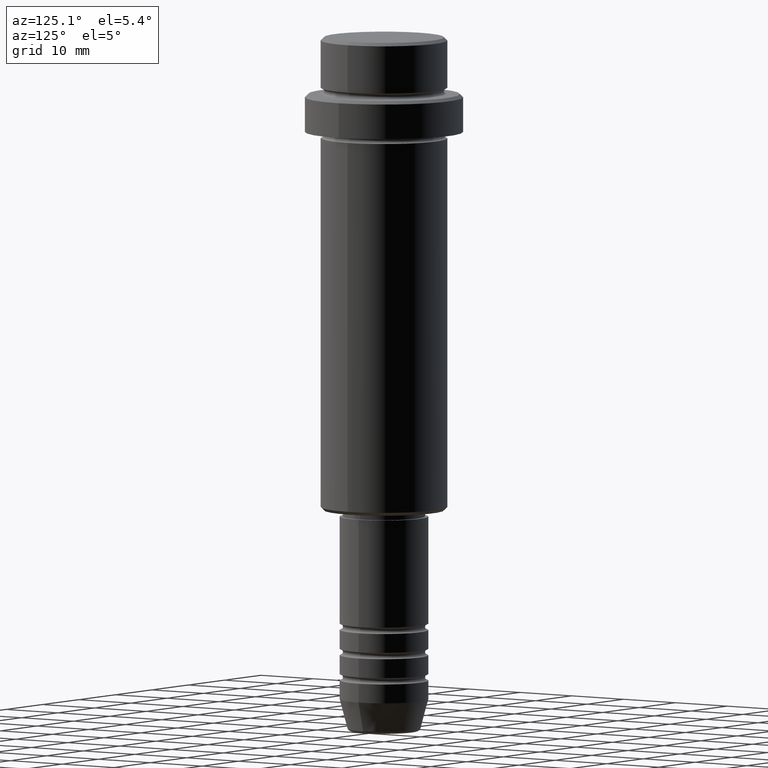
[diagram: clean part render]
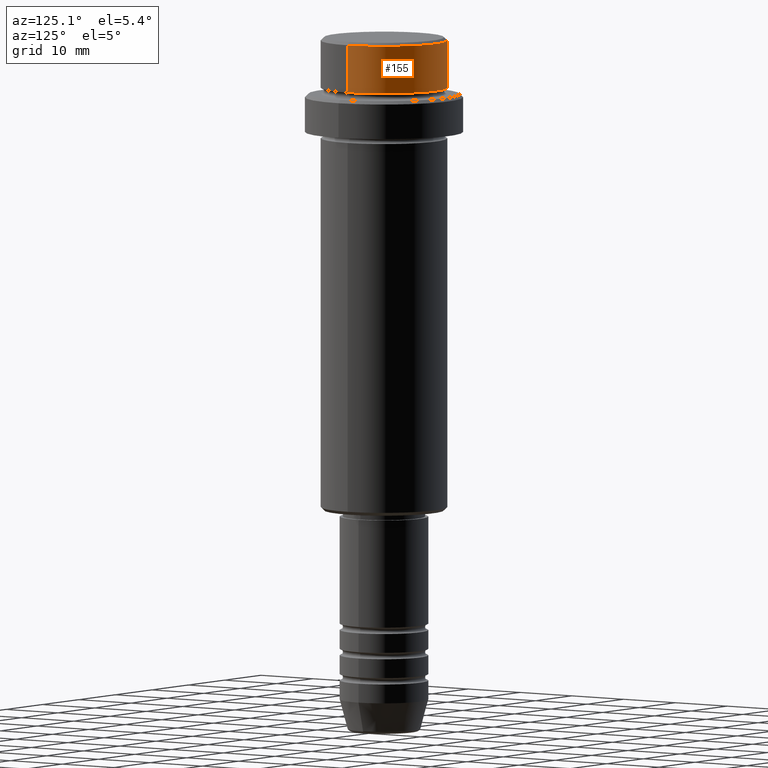
[diagram: same view with one face highlighted and labeled with its STEP entity id]
A machine part, auxiliary view. The second image highlights one B-rep face of the part: STEP entity #155.
In plain terms, the highlighted cylindrical surface (partial cylindrical patch) has radius 10 mm, axis along (-0, -0, 1).
Its self-contained STEP definition (entity closure, byte-faithful):
#39 = CARTESIAN_POINT ( 'NONE',  ( -9.999999999999998224, 1.224646799147353059E-15, 0.000000000000000000 ) ) ;
#67 = EDGE_CURVE ( 'NONE', #376, #791, #1210, .T. ) ;
#86 = CARTESIAN_POINT ( 'NONE',  ( 9.999999999999998224, 0.000000000000000000, -0.5000000000000108802 ) ) ;
#92 = DIRECTION ( 'NONE',  ( 1.000000000000000000, 0.000000000000000000, 0.000000000000000000 ) ) ;
#95 = CIRCLE ( 'NONE', #256, 9.999999999999998224 ) ;
#110 = CARTESIAN_POINT ( 'NONE',  ( -9.999999999999998224, 1.224646799147353059E-15, -0.5000000000000108802 ) ) ;
#155 = ADVANCED_FACE ( 'NONE', ( #985 ), #1072, .T. ) ;
#248 = EDGE_CURVE ( 'NONE', #494, #917, #268, .T. ) ;
#250 = CIRCLE ( 'NONE', #1283, 9.999999999999998224 ) ;
#256 = AXIS2_PLACEMENT_3D ( 'NONE', #960, #1177, #1411 ) ;
#268 = LINE ( 'NONE', #39, #1338 ) ;
#297 = VECTOR ( 'NONE', #1098, 1000.000000000000000 ) ;
#305 = CARTESIAN_POINT ( 'NONE',  ( -9.999999999999998224, 1.224646799147353059E-15, -7.999999999999998224 ) ) ;
#376 = VERTEX_POINT ( 'NONE', #386 ) ;
#386 = CARTESIAN_POINT ( 'NONE',  ( 9.999999999999998224, 0.000000000000000000, -7.999999999999998224 ) ) ;
#440 = DIRECTION ( 'NONE',  ( -0.000000000000000000, -0.000000000000000000, 1.000000000000000000 ) ) ;
#494 = VERTEX_POINT ( 'NONE', #305 ) ;
#580 = EDGE_CURVE ( 'NONE', #917, #791, #95, .T. ) ;
#601 = DIRECTION ( 'NONE',  ( -0.000000000000000000, -0.000000000000000000, 1.000000000000000000 ) ) ;
#614 = ORIENTED_EDGE ( 'NONE', *, *, #1186, .T. ) ;
#655 = ORIENTED_EDGE ( 'NONE', *, *, #248, .T. ) ;
#702 = ORIENTED_EDGE ( 'NONE', *, *, #580, .T. ) ;
#730 = CARTESIAN_POINT ( 'NONE',  ( 0.000000000000000000, 0.000000000000000000, -7.999999999999998224 ) ) ;
#736 = DIRECTION ( 'NONE',  ( 1.000000000000000000, 0.000000000000000000, 0.000000000000000000 ) ) ;
#791 = VERTEX_POINT ( 'NONE', #86 ) ;
#917 = VERTEX_POINT ( 'NONE', #110 ) ;
#960 = CARTESIAN_POINT ( 'NONE',  ( 0.000000000000000000, 0.000000000000000000, -0.5000000000000108802 ) ) ;
#963 = CARTESIAN_POINT ( 'NONE',  ( 0.000000000000000000, 0.000000000000000000, 0.000000000000000000 ) ) ;
#982 = ORIENTED_EDGE ( 'NONE', *, *, #67, .F. ) ;
#985 = FACE_OUTER_BOUND ( 'NONE', #1230, .T. ) ;
#1072 = CYLINDRICAL_SURFACE ( 'NONE', #1312, 9.999999999999998224 ) ;
#1098 = DIRECTION ( 'NONE',  ( -0.000000000000000000, -0.000000000000000000, 1.000000000000000000 ) ) ;
#1177 = DIRECTION ( 'NONE',  ( 0.000000000000000000, 0.000000000000000000, -1.000000000000000000 ) ) ;
#1186 = EDGE_CURVE ( 'NONE', #376, #494, #250, .T. ) ;
#1210 = LINE ( 'NONE', #1301, #297 ) ;
#1230 = EDGE_LOOP ( 'NONE', ( #614, #655, #702, #982 ) ) ;
#1283 = AXIS2_PLACEMENT_3D ( 'NONE', #730, #601, #736 ) ;
#1301 = CARTESIAN_POINT ( 'NONE',  ( 9.999999999999998224, 0.000000000000000000, 0.000000000000000000 ) ) ;
#1312 = AXIS2_PLACEMENT_3D ( 'NONE', #963, #440, #92 ) ;
#1338 = VECTOR ( 'NONE', #1343, 1000.000000000000000 ) ;
#1343 = DIRECTION ( 'NONE',  ( -0.000000000000000000, -0.000000000000000000, 1.000000000000000000 ) ) ;
#1411 = DIRECTION ( 'NONE',  ( 1.000000000000000000, 0.000000000000000000, 0.000000000000000000 ) ) ;